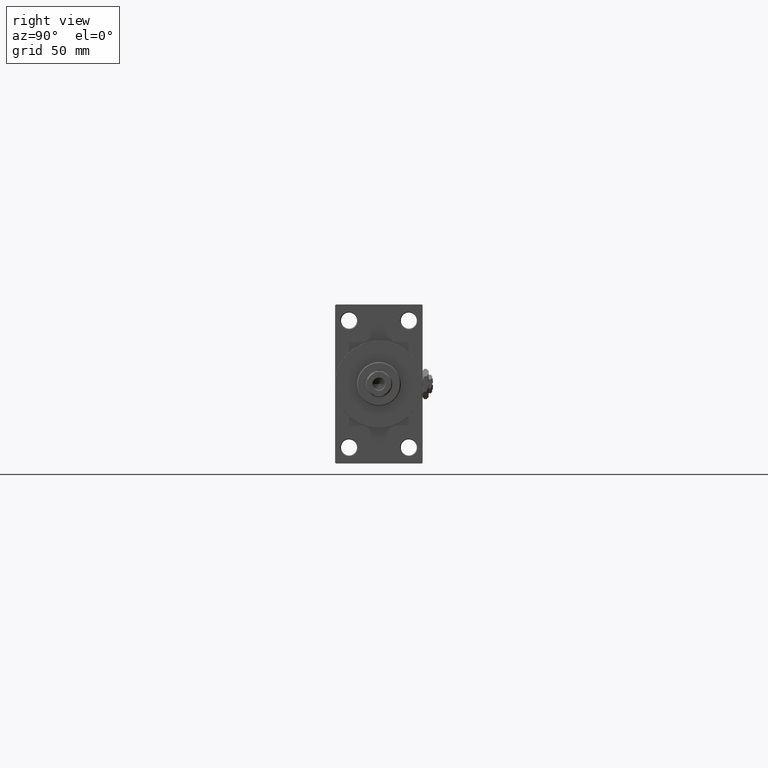
[diagram: clean part render]
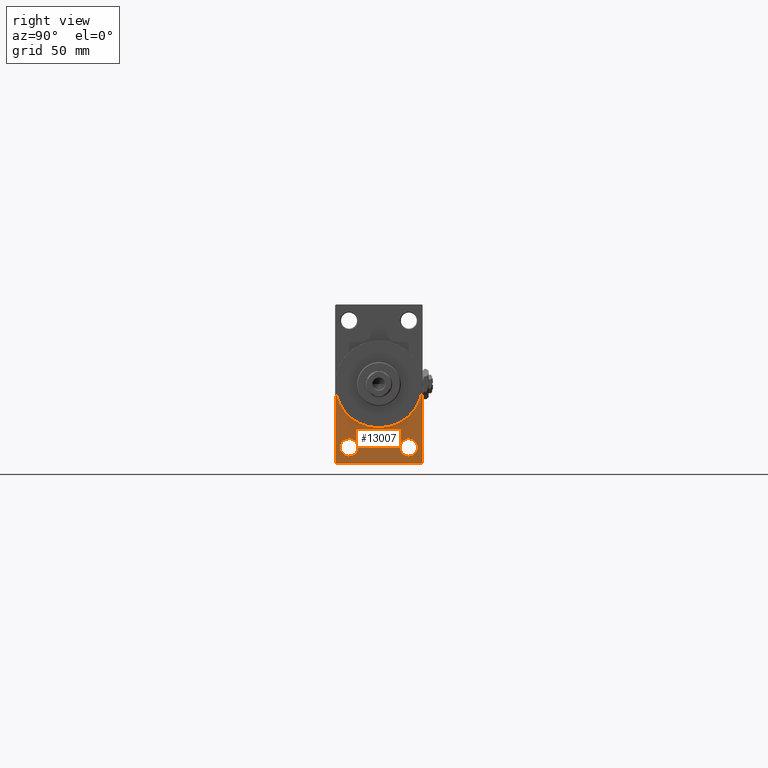
[diagram: same view with one face highlighted and labeled with its STEP entity id]
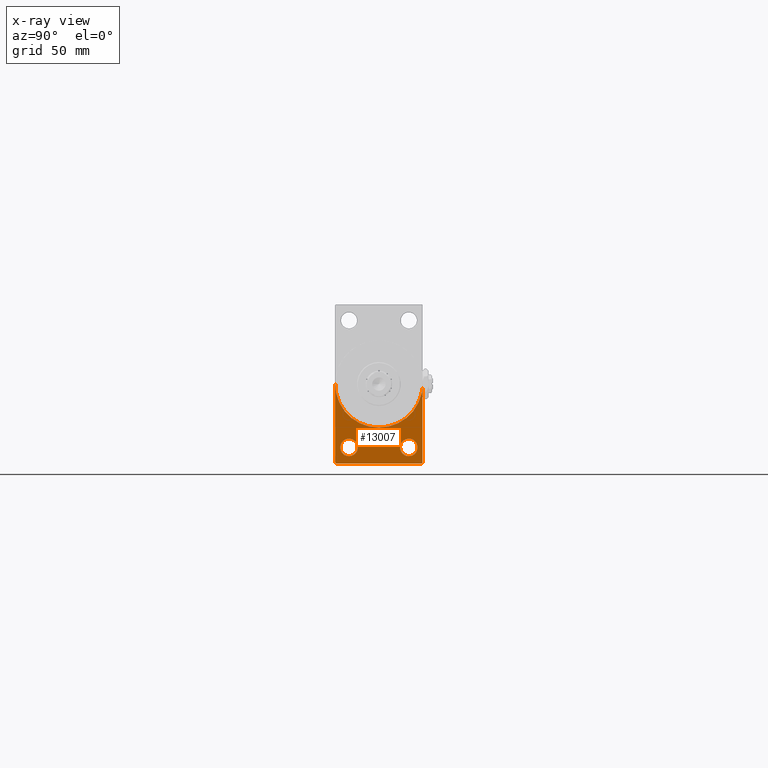
[diagram: x-ray of the same camera — body ghosted, the highlighted face saturated]
A machine part, right view. The second image highlights one B-rep face of the part: STEP entity #13007.
The next image is the same camera in x-ray: the body ghosted, the highlighted face saturated — about 0% of this face is hidden behind the body in this view.
In plain terms, the highlighted planar face has unit normal (-1, 0, 0).
Its self-contained STEP definition (entity closure, byte-faithful):
#92 = CARTESIAN_POINT ( 'NONE',  ( 437.9999999999999432, 30.00000000000000000, 0.000000000000000000 ) ) ;
#379 = DIRECTION ( 'NONE',  ( -1.000000000000000000, 0.000000000000000000, -0.000000000000000000 ) ) ;
#824 = EDGE_CURVE ( 'NONE', #10187, #6847, #5993, .T. ) ;
#1827 = EDGE_CURVE ( 'NONE', #5253, #13548, #9901, .T. ) ;
#3094 = VERTEX_POINT ( 'NONE', #92 ) ;
#3347 = EDGE_LOOP ( 'NONE', ( #20033, #30407 ) ) ;
#4926 = EDGE_CURVE ( 'NONE', #46912, #31566, #9232, .T. ) ;
#5083 = ORIENTED_EDGE ( 'NONE', *, *, #30344, .T. ) ;
#5253 = VERTEX_POINT ( 'NONE', #45199 ) ;
#5561 = LINE ( 'NONE', #39953, #38446 ) ;
#5602 = VECTOR ( 'NONE', #25044, 1000.000000000000000 ) ;
#5694 = CARTESIAN_POINT ( 'NONE',  ( 437.9999999999999432, 0.000000000000000000, 0.000000000000000000 ) ) ;
#5993 = CIRCLE ( 'NONE', #12385, 30.00000000000000000 ) ;
#6373 = DIRECTION ( 'NONE',  ( -1.000000000000000000, 0.000000000000000000, -0.000000000000000000 ) ) ;
#6541 = ORIENTED_EDGE ( 'NONE', *, *, #28940, .T. ) ;
#6847 = VERTEX_POINT ( 'NONE', #13915 ) ;
#7778 = DIRECTION ( 'NONE',  ( -1.000000000000000000, 0.000000000000000000, -0.000000000000000000 ) ) ;
#7927 = CARTESIAN_POINT ( 'NONE',  ( 437.9999999999999432, 0.000000000000000000, 0.000000000000000000 ) ) ;
#8673 = FACE_BOUND ( 'NONE', #3347, .T. ) ;
#8897 = CARTESIAN_POINT ( 'NONE',  ( 437.9999999999999432, 29.99999999999999645, 54.49999999999999289 ) ) ;
#9006 = ORIENTED_EDGE ( 'NONE', *, *, #21143, .F. ) ;
#9232 = CIRCLE ( 'NONE', #32299, 6.000000000000060396 ) ;
#9768 = ORIENTED_EDGE ( 'NONE', *, *, #24096, .F. ) ;
#9901 = CIRCLE ( 'NONE', #36962, 6.000000000000060396 ) ;
#10061 = ORIENTED_EDGE ( 'NONE', *, *, #19438, .T. ) ;
#10187 = VERTEX_POINT ( 'NONE', #10658 ) ;
#10658 = CARTESIAN_POINT ( 'NONE',  ( 437.9999999999999432, -30.00000000000000000, 0.000000000000000000 ) ) ;
#12385 = AXIS2_PLACEMENT_3D ( 'NONE', #5694, #43588, #25360 ) ;
#12538 = ORIENTED_EDGE ( 'NONE', *, *, #12627, .T. ) ;
#12543 = CARTESIAN_POINT ( 'NONE',  ( 437.9999999999999432, -29.49999999999994671, -54.50000000000000000 ) ) ;
#12627 = EDGE_CURVE ( 'NONE', #45671, #47326, #26072, .T. ) ;
#12816 = AXIS2_PLACEMENT_3D ( 'NONE', #25756, #40970, #37720 ) ;
#13007 = ADVANCED_FACE ( 'NONE', ( #27623, #8673, #26882 ), #42096, .F. ) ;
#13328 = LINE ( 'NONE', #36767, #5602 ) ;
#13454 = LINE ( 'NONE', #43882, #43674 ) ;
#13472 = VECTOR ( 'NONE', #35091, 1000.000000000000000 ) ;
#13548 = VERTEX_POINT ( 'NONE', #31673 ) ;
#13915 = CARTESIAN_POINT ( 'NONE',  ( 437.9999999999999432, 3.673940397442059178E-15, -30.00000000000000000 ) ) ;
#14105 = DIRECTION ( 'NONE',  ( -0.000000000000000000, 0.7071067811865081598, 0.7071067811865868746 ) ) ;
#15240 = CIRCLE ( 'NONE', #12816, 30.00000000000000000 ) ;
#16248 = ORIENTED_EDGE ( 'NONE', *, *, #1827, .T. ) ;
#18572 = DIRECTION ( 'NONE',  ( 0.000000000000000000, 0.000000000000000000, 1.000000000000000000 ) ) ;
#18818 = CARTESIAN_POINT ( 'NONE',  ( 437.9999999999999432, 20.50000000000000000, -43.50000000000000000 ) ) ;
#19257 = DIRECTION ( 'NONE',  ( 0.000000000000000000, 0.000000000000000000, 1.000000000000000000 ) ) ;
#19428 = AXIS2_PLACEMENT_3D ( 'NONE', #27475, #7778, #19257 ) ;
#19438 = EDGE_CURVE ( 'NONE', #10187, #44671, #13454, .T. ) ;
#20033 = ORIENTED_EDGE ( 'NONE', *, *, #4926, .T. ) ;
#20505 = ORIENTED_EDGE ( 'NONE', *, *, #824, .F. ) ;
#21143 = EDGE_CURVE ( 'NONE', #3094, #47326, #38574, .T. ) ;
#21269 = VECTOR ( 'NONE', #14105, 1000.000000000000000 ) ;
#21567 = DIRECTION ( 'NONE',  ( 0.000000000000000000, 0.000000000000000000, 1.000000000000000000 ) ) ;
#22658 = DIRECTION ( 'NONE',  ( -1.000000000000000000, 0.000000000000000000, -0.000000000000000000 ) ) ;
#24096 = EDGE_CURVE ( 'NONE', #45671, #28287, #13328, .T. ) ;
#24688 = CARTESIAN_POINT ( 'NONE',  ( 437.9999999999999432, 20.50000000000000000, -37.49999999999993605 ) ) ;
#25044 = DIRECTION ( 'NONE',  ( 0.000000000000000000, -1.000000000000000000, -1.156482317317871478E-16 ) ) ;
#25360 = DIRECTION ( 'NONE',  ( 0.000000000000000000, 0.000000000000000000, -1.000000000000000000 ) ) ;
#25756 = CARTESIAN_POINT ( 'NONE',  ( 437.9999999999999432, 0.000000000000000000, 0.000000000000000000 ) ) ;
#25796 = EDGE_CURVE ( 'NONE', #6847, #3094, #15240, .T. ) ;
#26029 = EDGE_LOOP ( 'NONE', ( #10061, #5083, #9768, #12538, #9006, #48084, #20505 ) ) ;
#26072 = LINE ( 'NONE', #36558, #21269 ) ;
#26882 = FACE_OUTER_BOUND ( 'NONE', #26029, .T. ) ;
#27475 = CARTESIAN_POINT ( 'NONE',  ( 437.9999999999999432, 20.50000000000000000, -43.50000000000000000 ) ) ;
#27623 = FACE_BOUND ( 'NONE', #30678, .T. ) ;
#27634 = AXIS2_PLACEMENT_3D ( 'NONE', #7927, #34612, #38351 ) ;
#27761 = DIRECTION ( 'NONE',  ( 0.000000000000000000, 0.7071067811865352493, -0.7071067811865597852 ) ) ;
#27808 = CARTESIAN_POINT ( 'NONE',  ( 437.9999999999999432, -30.00000000000000000, -53.99999999999992895 ) ) ;
#28287 = VERTEX_POINT ( 'NONE', #12543 ) ;
#28940 = EDGE_CURVE ( 'NONE', #13548, #5253, #29644, .T. ) ;
#29644 = CIRCLE ( 'NONE', #45600, 6.000000000000060396 ) ;
#30344 = EDGE_CURVE ( 'NONE', #44671, #28287, #5561, .T. ) ;
#30407 = ORIENTED_EDGE ( 'NONE', *, *, #36482, .T. ) ;
#30678 = EDGE_LOOP ( 'NONE', ( #16248, #6541 ) ) ;
#31566 = VERTEX_POINT ( 'NONE', #24688 ) ;
#31673 = CARTESIAN_POINT ( 'NONE',  ( 437.9999999999999432, -20.50000000000000000, -37.49999999999993605 ) ) ;
#32171 = CIRCLE ( 'NONE', #19428, 6.000000000000060396 ) ;
#32299 = AXIS2_PLACEMENT_3D ( 'NONE', #18818, #379, #18572 ) ;
#32904 = DIRECTION ( 'NONE',  ( 0.000000000000000000, 0.000000000000000000, -1.000000000000000000 ) ) ;
#34612 = DIRECTION ( 'NONE',  ( -1.000000000000000000, 0.000000000000000000, -0.000000000000000000 ) ) ;
#35091 = DIRECTION ( 'NONE',  ( 0.000000000000000000, 0.000000000000000000, -1.000000000000000000 ) ) ;
#36482 = EDGE_CURVE ( 'NONE', #31566, #46912, #32171, .T. ) ;
#36558 = CARTESIAN_POINT ( 'NONE',  ( 437.9999999999999432, 29.99999999999999645, -53.99999999999999289 ) ) ;
#36767 = CARTESIAN_POINT ( 'NONE',  ( 437.9999999999999432, 29.99999999999999645, -54.49999999999999289 ) ) ;
#36962 = AXIS2_PLACEMENT_3D ( 'NONE', #40534, #6373, #21567 ) ;
#37720 = DIRECTION ( 'NONE',  ( 0.000000000000000000, 0.000000000000000000, -1.000000000000000000 ) ) ;
#38138 = CARTESIAN_POINT ( 'NONE',  ( 437.9999999999999432, 20.50000000000000000, -49.50000000000005684 ) ) ;
#38351 = DIRECTION ( 'NONE',  ( -0.000000000000000000, 0.000000000000000000, 1.000000000000000000 ) ) ;
#38446 = VECTOR ( 'NONE', #27761, 1000.000000000000000 ) ;
#38574 = LINE ( 'NONE', #8897, #13472 ) ;
#39953 = CARTESIAN_POINT ( 'NONE',  ( 437.9999999999999432, -29.49999999999994671, -54.50000000000000000 ) ) ;
#40534 = CARTESIAN_POINT ( 'NONE',  ( 437.9999999999999432, -20.50000000000000000, -43.50000000000000000 ) ) ;
#40970 = DIRECTION ( 'NONE',  ( 1.000000000000000000, 0.000000000000000000, 0.000000000000000000 ) ) ;
#41861 = CARTESIAN_POINT ( 'NONE',  ( 437.9999999999999432, -20.50000000000000000, -43.50000000000000000 ) ) ;
#42096 = PLANE ( 'NONE',  #27634 ) ;
#42112 = DIRECTION ( 'NONE',  ( 0.000000000000000000, 0.000000000000000000, 1.000000000000000000 ) ) ;
#43588 = DIRECTION ( 'NONE',  ( 1.000000000000000000, 0.000000000000000000, 0.000000000000000000 ) ) ;
#43674 = VECTOR ( 'NONE', #32904, 1000.000000000000000 ) ;
#43882 = CARTESIAN_POINT ( 'NONE',  ( 437.9999999999999432, -30.00000000000000000, 54.50000000000000000 ) ) ;
#44671 = VERTEX_POINT ( 'NONE', #27808 ) ;
#45199 = CARTESIAN_POINT ( 'NONE',  ( 437.9999999999999432, -20.50000000000000000, -49.50000000000005684 ) ) ;
#45446 = CARTESIAN_POINT ( 'NONE',  ( 437.9999999999999432, 29.99999999999999645, -53.99999999999999289 ) ) ;
#45600 = AXIS2_PLACEMENT_3D ( 'NONE', #41861, #22658, #42112 ) ;
#45671 = VERTEX_POINT ( 'NONE', #48464 ) ;
#46912 = VERTEX_POINT ( 'NONE', #38138 ) ;
#47326 = VERTEX_POINT ( 'NONE', #45446 ) ;
#48084 = ORIENTED_EDGE ( 'NONE', *, *, #25796, .F. ) ;
#48464 = CARTESIAN_POINT ( 'NONE',  ( 437.9999999999999432, 29.50000000000004974, -54.49999999999999289 ) ) ;